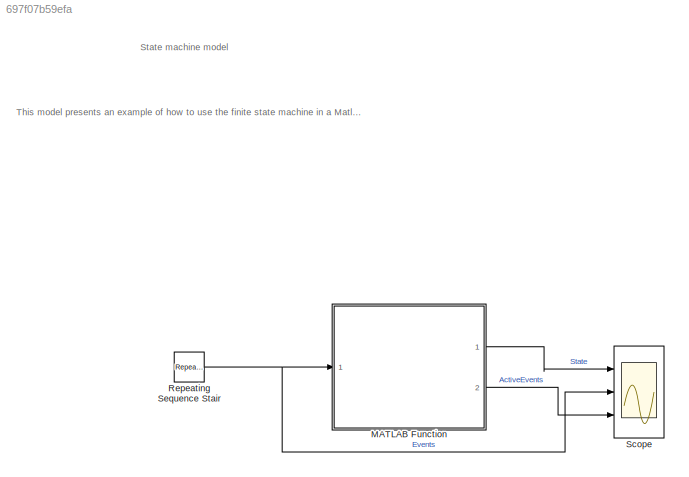
MODEL slx_697f07b59efa
KIND model
CONFIG AbsTol = auto
CONFIG EnableMultiTasking = off
CONFIG FixedStep = auto
CONFIG MaxStep = auto
CONFIG MinStep = auto
CONFIG RelTol = 1e-3
CONFIG SampleTimeConstraint = Unconstrained
CONFIG SolverName = VariableStepAuto
CONFIG StartTime = 0.0
CONFIG StopTime = 1.0
WORKSPACE source: MATLAB code (in-file)
WORKSPACE code: addpath model
WORKSPACE code: addpath utils
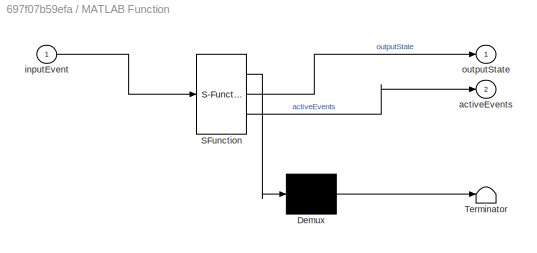
BLOCK [SubSystem] MATLAB Function
  ErrorFcn = Stateflow.Translate.translate
  PermitHierarchicalResolution = ExplicitOnly
  Ports = [1, 2]
  RequestExecContextInheritance = off
  SFBlockType = MATLAB Function
  TreatAsAtomicUnit = on
BLOCK [Demux] MATLAB Function/ Demux 
  Outputs = 1
  Ports = [1, 1]
BLOCK [S-Function] MATLAB Function/ SFunction 
  EnableBusSupport = on
  FunctionName = sf_sfun
  PortCounts = [1 3]
  Ports = [1, 3]
  SFcnIsStateOwnerBlock = off
  SFunctionDeploymentMode = off
  Tag = Stateflow S-Function 2
BLOCK [Terminator] MATLAB Function/ Terminator 
BLOCK [Outport] MATLAB Function/activeEvents
  Port = 2
BLOCK [Inport] MATLAB Function/inputEvent
BLOCK [Outport] MATLAB Function/outputState
BLOCK [Reference] Repeating Sequence Stair  REF=simulink/Sources/Repeating
Sequence
Stair
  Ports = [0, 1]
  SourceBlock = simulink/Sources/Repeating\nSequence\nStair
  SourceProductBaseCode = SL
  SourceType = Repeating Sequence Stair
BLOCK [Scope] Scope
  Floating = off
  NumInputPorts = 3
  Ports = [3]
  ScopeSpecificationString = Simulink.scopes.TimeScopeBlockCfg('CurrentConfiguration', extmgr.ConfigurationSet(extmgr.Configuration('Core','General UI',true),extmgr.Configuration('Core','Source UI',true),extmgr.Configuration('Sources','WiredSimulink',true),extmgr.Configuration('Visuals','Time Domain',true,'SerializedDisplays',{struct('MinYLimReal','-0.25','MaxYLimReal','2.25','YLabelReal','','MinYLimMag','0.00000','MaxYLimMag...<+2902ch>
ANNOTATION (root): This model presents an example of how to use the finite state machine in a Matlab function block with user made parameters, instead of designing it with the StateFlow app.
ANNOTATION (root): State machine model
LINE MATLAB Function:1 -> Scope:1
LINE MATLAB Function:2 -> Scope:3
NET Repeating Sequence Stair:1 -> MATLAB Function:1, Scope:2
note: NET lines group one-source signal fan-out (src -> all destinations, sorted); 1:1 wires keep LINE
CHART MATLAB Function states=1 transitions=1
  STATE_LABEL 'eML_blk_kernel()'
  STATE_LABEL "SCRIPT:\nfunction [outputState, activeEvents]  = stateMachineFcn(inputEvent)\n% Example of a State Machine with 3 states.\npersistent stateMachine\n\nif (isempty(stateMachine))\n    \n    % Create the states with the State Class.\n    s0 = State(0, 's0', [1,0,1,1,1]);\n    s1 = State(1, 's1', [1,1,0,1,1]);\n    s2 = State(2, 's2', [1,0,1,1,1]);\n\n    % Group it in a cell array.\n    statesArray = {s0, s1, s2}...<+522ch>"
CHART  states=0 transitions=0
